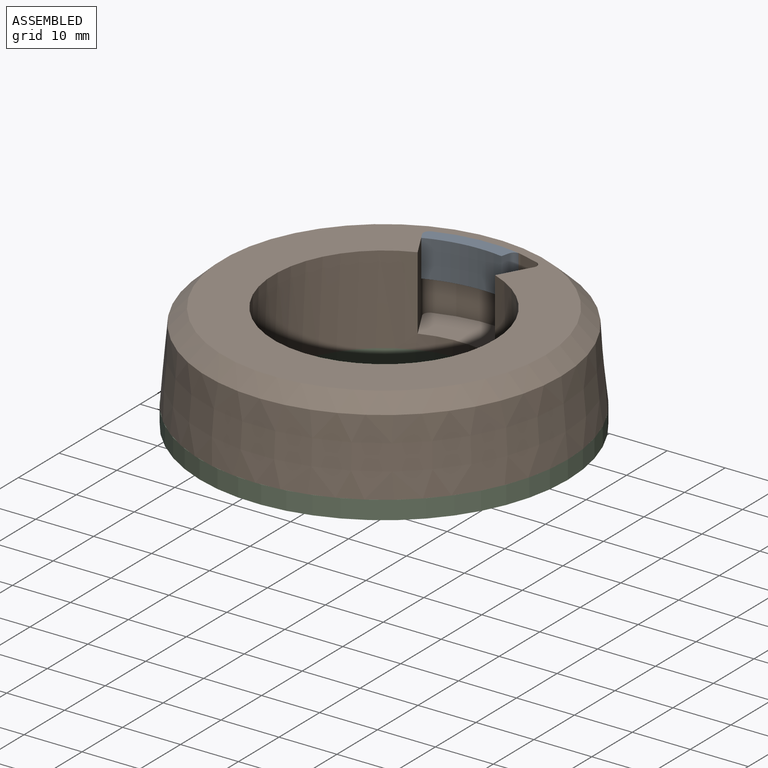
[diagram: assembled view]
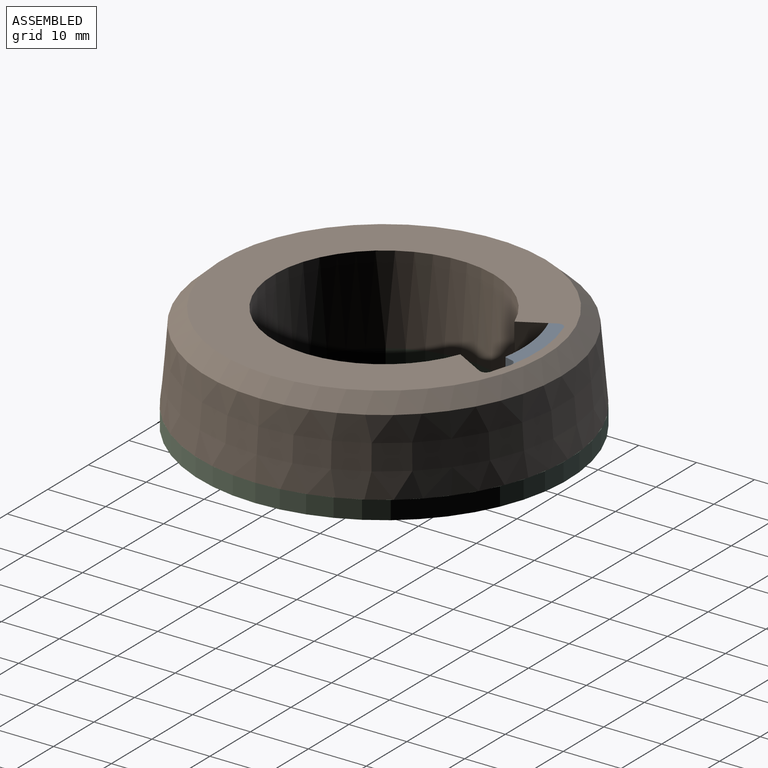
[diagram: assembled view, second angle]
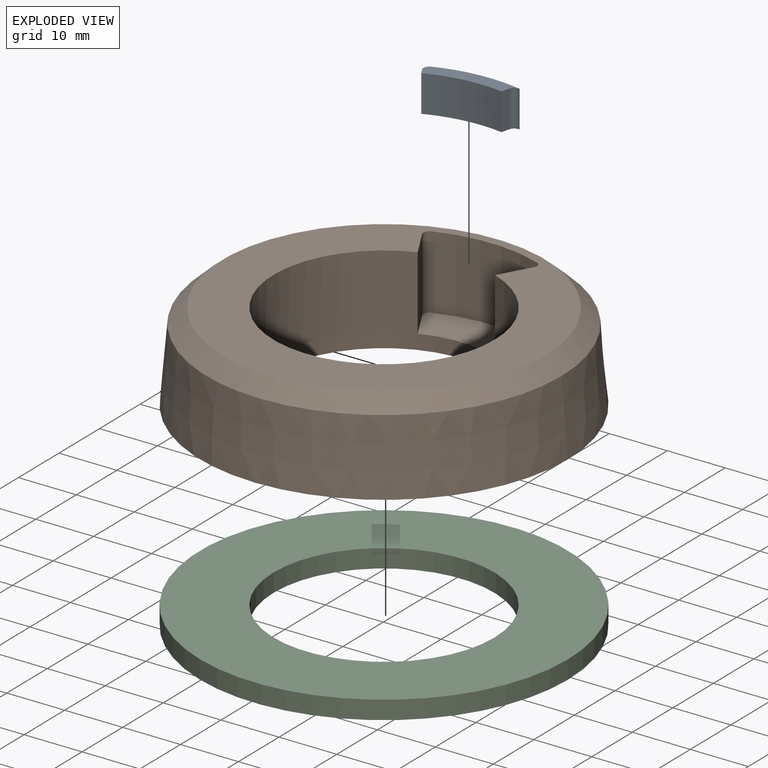
[diagram: exploded view]
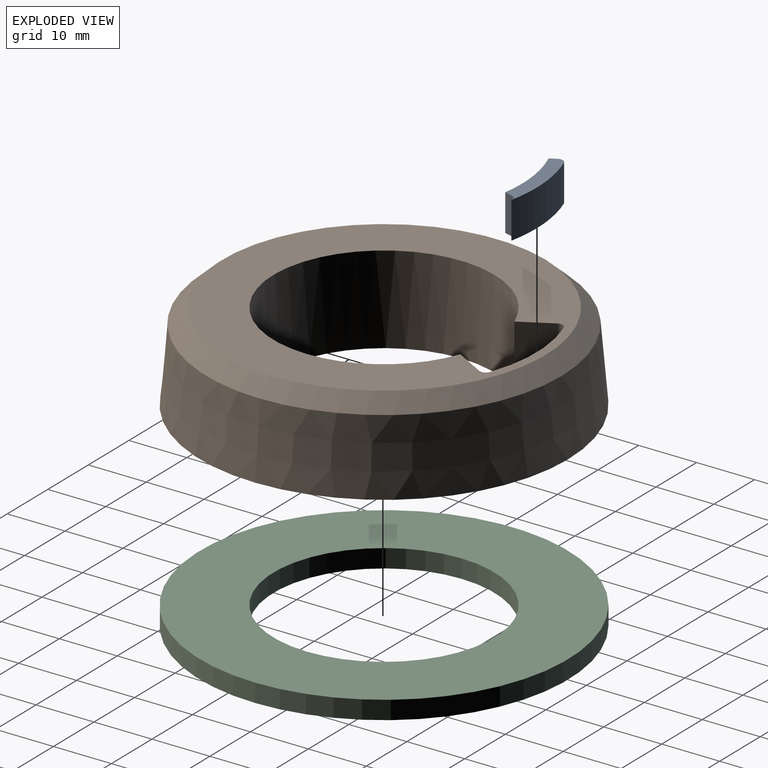
[diagram: exploded view, second angle]
ASSEMBLY  parts=3 mates=2
PART A: 8 faces, bbox 15.2x4.2x6.4 mm
  f0: cylinder r=23.85mm len=12.8mm, axis (0,0,-1), area 82.8mm2, adj f1,f5,f6,f7
  f1: plane 6.35x1.44mm, normal (0.97,-0.26,0), area 9.5mm2, adj f0,f2,f6,f7
  f2: cylinder r=1.05mm len=6.35mm, axis (0,0,-1), area 10.1mm2, adj f1,f3,f6,f7
  f3: cylinder r=26.32mm len=14.48mm, axis (0,0,-1), area 93.4mm2, adj f2,f4,f6,f7
  f4: cylinder r=1.05mm len=6.35mm, axis (0,0,-1), area 11.5mm2, adj f3,f5,f6,f7
  f5: plane 6.35x1.12mm, normal (-0.87,-0.49,0), area 8.1mm2, adj f0,f4,f6,f7
  f6: plane 15.17x4.24mm, normal (0,0,1), area 34.3mm2, adj f0,f1,f2,f3,f4,f5
  f7: plane 15.17x4.24mm, normal (0,0,-1), area 34.3mm2, adj f0,f1,f2,f3,f4,f5
PART B: 11 faces, bbox 63.5x63.5x15.2 mm
  f0: plane 55.75x55.75mm, normal (0,0,1), area 1175.9mm2, adj f3,f4,f5,f6,f7,f8,f10
  f1: cone r=31.75mm half-angle=5deg, axis (0,0,-1), area 2500.6mm2, adj f2,f10
  f2: plane 63.5x63.5mm, normal (0,0,-1), area 2026.8mm2, adj f1,f3
  f3: cylinder r=19.05mm len=38.1mm, axis (0,0,1), area 1650.8mm2, adj f0,f2,f4,f5,f9
  f4: plane 12.7x5.35mm, normal (0.87,0.49,0), area 77.8mm2, adj f0,f3,f8,f9
  f5: plane 12.7x5.35mm, normal (-0.87,0.49,0), area 77.8mm2, adj f0,f3,f6,f9
  f6: cylinder r=1.05mm len=12.7mm, axis (0,0,1), area 23.1mm2, adj f0,f5,f7,f9
  f7: cylinder r=26.32mm len=18.2mm, axis (0,0,1), area 236.1mm2, adj f0,f6,f8,f9
  f8: cylinder r=1.05mm len=12.7mm, axis (0,0,1), area 23.1mm2, adj f0,f4,f7,f9
  f9: plane 19.58x8.48mm, normal (0,0,1), area 125.4mm2, adj f3,f4,f5,f6,f7,f8
  f10: cone r=27.88mm half-angle=47.5deg, axis (0,0,-1), area 688.5mm2, adj f0,f1
PART C: 4 faces, bbox 63.5x63.5x3.2 mm
  f0: cylinder r=19.05mm len=38.1mm, axis (0,0,-1), area 380mm2, adj f2,f3
  f1: cylinder r=31.75mm len=63.5mm, axis (0,0,-1), area 633.4mm2, adj f2,f3
  f2: plane 63.5x63.5mm, normal (0,0,1), area 2026.8mm2, adj f0,f1
  f3: plane 63.5x63.5mm, normal (0,0,-1), area 2026.8mm2, adj f0,f1
PLACE A t=(-0.09,61.04,-24.77)mm
PLACE B t=(2.41,36.74,-33.66)mm
PLACE C t=(2.41,36.74,-36.83)mm
MATE fastened B.f3 <-> C.f0  axis (0,0,-1) through (2.41,36.74,-33.66)mm
MATE fastened B.f0 <-> A.f6  axis (0,0,1) through (-6.7,61.44,-18.42)mm
